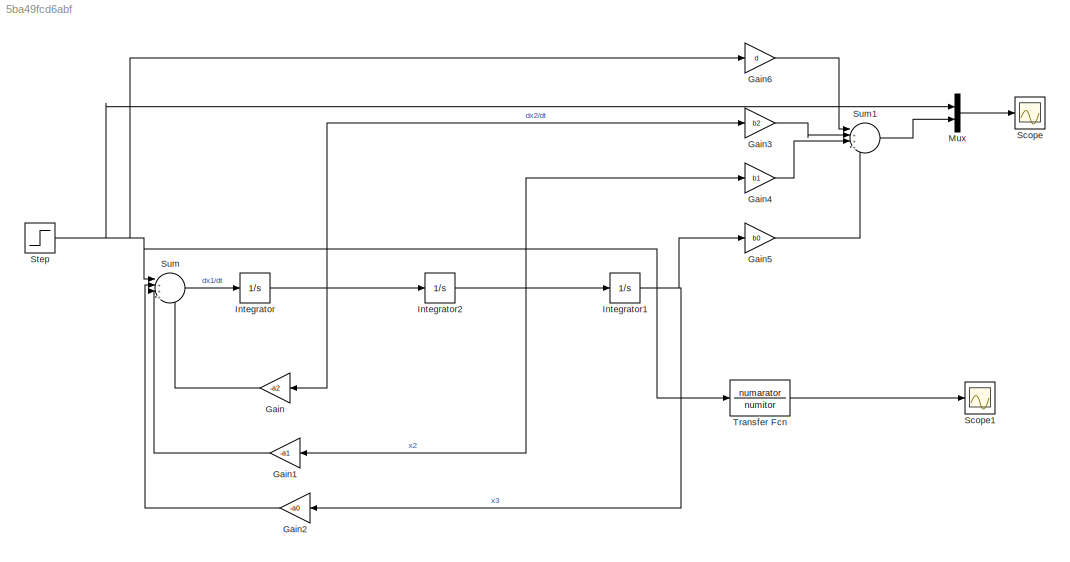
MODEL slx_5ba49fcd6abf
KIND model
CONFIG AbsTol = auto
CONFIG EnableMultiTasking = off
CONFIG FixedStep = auto
CONFIG MaxStep = auto
CONFIG MinStep = auto
CONFIG RelTol = 1e-3
CONFIG SampleTimeConstraint = Unconstrained
CONFIG SolverName = VariableStepAuto
CONFIG StartTime = 0.0
CONFIG StopTime = 600
BLOCK [Gain] Gain
  Gain = -a2
  NameLocation = top
BLOCK [Gain] Gain1
  Gain = -a1
  NameLocation = top
BLOCK [Gain] Gain2
  Gain = -a0
  NameLocation = top
BLOCK [Gain] Gain3
  Gain = b2
BLOCK [Gain] Gain4
  Gain = b1
BLOCK [Gain] Gain5
  Gain = b0
BLOCK [Gain] Gain6
  Gain = d
BLOCK [Integrator] Integrator
  Ports = [1, 1]
BLOCK [Integrator] Integrator1
  Ports = [1, 1]
BLOCK [Integrator] Integrator2
  Ports = [1, 1]
BLOCK [Mux] Mux
  DisplayOption = bar
  Inputs = 2
  Ports = [2, 1]
BLOCK [Scope] Scope
  Floating = off
  NumInputPorts = 1
  Ports = [1]
  ScopeSpecificationString = Simulink.scopes.TimeScopeBlockCfg('CurrentConfiguration', extmgr.ConfigurationSet(extmgr.Configuration('Core','General UI',true),extmgr.Configuration('Core','Source UI',true),extmgr.Configuration('Sources','WiredSimulink',true,'DataLoggingVariableName','ScopeData1'),extmgr.Configuration('Visuals','Time Domain',true,'SerializedDisplays',{struct('MinYLimReal','-0.125','MaxYLimReal','1.125','YLabelRe...<+1391ch>
BLOCK [Scope] Scope1
  Floating = off
  NumInputPorts = 1
  Ports = [1]
  ScopeSpecificationString = Simulink.scopes.TimeScopeBlockCfg('CurrentConfiguration', extmgr.ConfigurationSet(extmgr.Configuration('Core','General UI',true),extmgr.Configuration('Core','Source UI',true),extmgr.Configuration('Sources','WiredSimulink',true,'DataLoggingVariableName','ScopeData1'),extmgr.Configuration('Visuals','Time Domain',true,'SerializedDisplays',{struct('MinYLimReal','-0.125','MaxYLimReal','1.125','YLabelRe...<+1392ch>
BLOCK [Step] Step
  SampleTime = 0
BLOCK [Sum] Sum
  Inputs = |++++
  Ports = [4, 1]
BLOCK [Sum] Sum1
  Inputs = |++++
  Ports = [4, 1]
BLOCK [TransferFcn] Transfer Fcn
  Denominator = numitor
  Numerator = numarator
LINE Gain1:1 -> Sum:3
LINE Gain2:1 -> Sum:2
LINE Gain3:1 -> Sum1:2
LINE Gain4:1 -> Sum1:3
LINE Gain5:1 -> Sum1:4
LINE Gain6:1 -> Sum1:1
LINE Gain:1 -> Sum:4
NET Integrator1:1 -> Gain2:1, Gain5:1
NET Integrator2:1 -> Gain1:1, Gain4:1, Integrator1:1
NET Integrator:1 -> Gain3:1, Gain:1, Integrator2:1
LINE Mux:1 -> Scope:1
NET Step:1 -> Gain6:1, Mux:1, Sum:1, Transfer Fcn:1
LINE Sum1:1 -> Mux:2
LINE Sum:1 -> Integrator:1
LINE Transfer Fcn:1 -> Scope1:1
note: NET lines group one-source signal fan-out (src -> all destinations, sorted); 1:1 wires keep LINE
